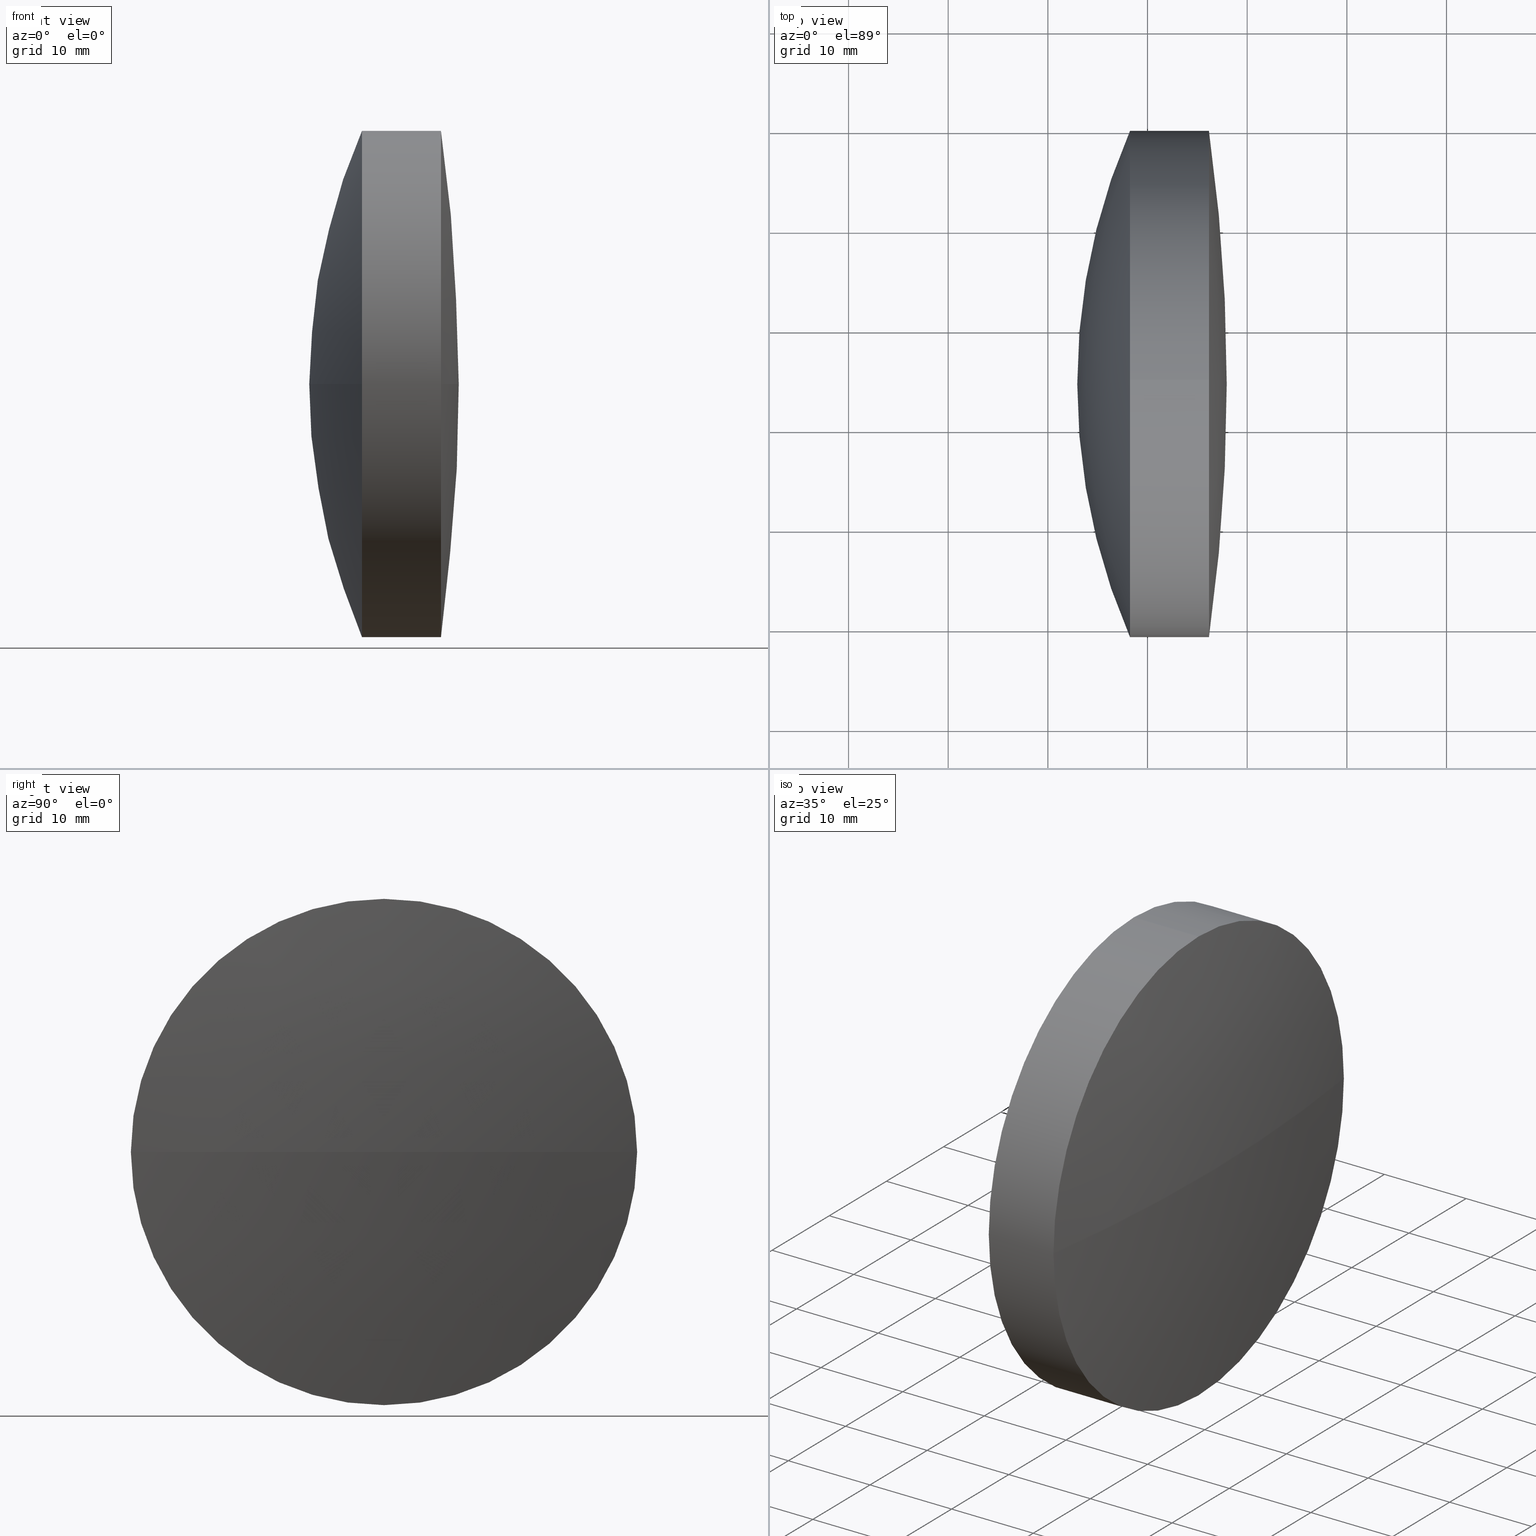
[diagram: canonical four-view strip — front | top / right | iso, engineering-drawing reading convention]
A machine part, canonical four-view strip (front | top / right | iso — engineering-drawing reading convention). The complete STEP part file that produces these views, byte-faithful:
ISO-10303-21;
HEADER;
FILE_DESCRIPTION (( 'STEP AP203' ),
    '1' );
FILE_NAME ('145281.STEP',
    '2024-05-13T01:16:53',
    ( '' ),
    ( '' ),
    'SwSTEP 2.0',
    'SolidWorks 2020',
    '' );
FILE_SCHEMA (( 'CONFIG_CONTROL_DESIGN' ));
ENDSEC;

DATA;
#1 = EDGE_LOOP ( 'NONE', ( #404, #8, #389, #387 ) ) ;
#2 = CIRCLE ( 'NONE', #357, 25.39999999999999858 ) ;
#3 = SHAPE_DEFINITION_REPRESENTATION ( #167, #356 ) ;
#4 = VERTEX_POINT ( 'NONE', #59 ) ;
#5 = EDGE_CURVE ( 'NONE', #343, #176, #364, .T. ) ;
#6 = CARTESIAN_POINT ( 'NONE',  ( -87.05097348642850363, 64.41514532454267794, 0.000000000000000000 ) ) ;
#7 = PRODUCT ( '145281', '145281', '', ( #227 ) ) ;
#8 = ORIENTED_EDGE ( 'NONE', *, *, #173, .T. ) ;
#9 =( GEOMETRIC_REPRESENTATION_CONTEXT ( 3 ) GLOBAL_UNCERTAINTY_ASSIGNED_CONTEXT ( ( #406 ) ) GLOBAL_UNIT_ASSIGNED_CONTEXT ( ( #119, #185, #283 ) ) REPRESENTATION_CONTEXT ( 'NONE', 'WORKASPACE' ) );
#10 = PERSON_AND_ORGANIZATION ( #118, #238 ) ;
#11 = ORIENTED_EDGE ( 'NONE', *, *, #24, .T. ) ;
#12 = CARTESIAN_POINT ( 'NONE',  ( -155.6709734864284940, 64.41514532454267794, 0.000000000000000000 ) ) ;
#13 = AXIS2_PLACEMENT_3D ( 'NONE', #87, #358, #400 ) ;
#14 = DIRECTION ( 'NONE',  ( -1.000000000000000000, -0.000000000000000000, -0.000000000000000000 ) ) ;
#15 = ORIENTED_EDGE ( 'NONE', *, *, #24, .F. ) ;
#16 = EDGE_CURVE ( 'NONE', #182, #4, #229, .T. ) ;
#17 = CARTESIAN_POINT ( 'NONE',  ( -79.15676304157061338, 64.41514532454267794, -25.39999999999999858 ) ) ;
#18 = DIRECTION ( 'NONE',  ( -1.000000000000000000, -0.000000000000000000, -0.000000000000000000 ) ) ;
#19 = CARTESIAN_POINT ( 'NONE',  ( -81.76059203481264603, 64.41514532454267794, 0.000000000000000000 ) ) ;
#20 = CARTESIAN_POINT ( 'NONE',  ( -75.05097348642850363, 64.41514532454267794, 25.39999999999999858 ) ) ;
#21 = DIRECTION ( 'NONE',  ( -0.000000000000000000, 0.000000000000000000, -1.000000000000000000 ) ) ;
#22 = CIRCLE ( 'NONE', #395, 25.39999999999999858 ) ;
#23 = DIRECTION ( 'NONE',  ( 0.000000000000000000, 0.000000000000000000, 1.000000000000000000 ) ) ;
#24 = EDGE_CURVE ( 'NONE', #115, #222, #114, .T. ) ;
#25 = CIRCLE ( 'NONE', #315, 25.39999999999999858 ) ;
#26 = ORIENTED_EDGE ( 'NONE', *, *, #138, .T. ) ;
#27 = CIRCLE ( 'NONE', #408, 181.6999999999999886 ) ;
#28 = DIRECTION ( 'NONE',  ( 0.000000000000000000, 1.000000000000000000, 0.000000000000000000 ) ) ;
#29 = DIRECTION ( 'NONE',  ( 0.000000000000000000, 1.224646799147353207E-16, -1.000000000000000000 ) ) ;
#30 = EDGE_CURVE ( 'NONE', #111, #4, #224, .T. ) ;
#31 = COORDINATED_UNIVERSAL_TIME_OFFSET ( 8, 0, .AHEAD. ) ;
#32 = ORIENTED_EDGE ( 'NONE', *, *, #107, .F. ) ;
#33 = COORDINATED_UNIVERSAL_TIME_OFFSET ( 8, 0, .AHEAD. ) ;
#34 = EDGE_LOOP ( 'NONE', ( #416, #413, #32, #247 ) ) ;
#35 = DIRECTION ( 'NONE',  ( -1.000000000000000000, -0.000000000000000000, -0.000000000000000000 ) ) ;
#36 = COORDINATED_UNIVERSAL_TIME_OFFSET ( 8, 0, .AHEAD. ) ;
#37 = ORIENTED_EDGE ( 'NONE', *, *, #380, .F. ) ;
#38 = AXIS2_PLACEMENT_3D ( 'NONE', #6, #35, #177 ) ;
#39 = EDGE_LOOP ( 'NONE', ( #436, #249, #11, #203 ) ) ;
#40 = DIRECTION ( 'NONE',  ( -1.000000000000000000, -0.000000000000000000, -0.000000000000000000 ) ) ;
#41 = EDGE_LOOP ( 'NONE', ( #382, #314, #15, #184, #208, #146 ) ) ;
#42 = CC_DESIGN_APPROVAL ( #275, ( #63 ) ) ;
#43 = DIRECTION ( 'NONE',  ( 0.000000000000000000, 0.000000000000000000, 1.000000000000000000 ) ) ;
#44 = AXIS2_PLACEMENT_3D ( 'NONE', #271, #104, #28 ) ;
#45 = DIRECTION ( 'NONE',  ( 0.000000000000000000, 0.000000000000000000, 1.000000000000000000 ) ) ;
#46 = DIRECTION ( 'NONE',  ( -0.000000000000000000, 0.000000000000000000, 1.000000000000000000 ) ) ;
#47 = AXIS2_PLACEMENT_3D ( 'NONE', #161, #189, #403 ) ;
#48 = PRODUCT_DEFINITION ( 'δ֪', '', #353, #393 ) ;
#49 = DIRECTION ( 'NONE',  ( 0.000000000000000000, 0.000000000000000000, 1.000000000000000000 ) ) ;
#50 = AXIS2_PLACEMENT_3D ( 'NONE', #292, #439, #56 ) ;
#51 = CARTESIAN_POINT ( 'NONE',  ( -73.83507646784927658, 39.01514532454268647, -3.110602869834275682E-15 ) ) ;
#52 = DIRECTION ( 'NONE',  ( -1.000000000000000000, -0.000000000000000000, -0.000000000000000000 ) ) ;
#53 = ORIENTED_EDGE ( 'NONE', *, *, #168, .F. ) ;
#54 = CALENDAR_DATE ( 2024, 13, 5 ) ;
#55 = FACE_OUTER_BOUND ( 'NONE', #39, .T. ) ;
#56 = DIRECTION ( 'NONE',  ( 1.000000000000000000, 0.000000000000000000, 0.000000000000000000 ) ) ;
#57 = DIRECTION ( 'NONE',  ( 1.000000000000000000, 0.000000000000000000, 0.000000000000000000 ) ) ;
#58 = AXIS2_PLACEMENT_3D ( 'NONE', #399, #323, #363 ) ;
#59 = CARTESIAN_POINT ( 'NONE',  ( -79.15676304157061338, 64.41514532454267794, 25.39999999999999858 ) ) ;
#60 = CARTESIAN_POINT ( 'NONE',  ( -73.83507646784927658, 89.81514532454266941, 0.000000000000000000 ) ) ;
#61 = AXIS2_PLACEMENT_3D ( 'NONE', #265, #29, #375 ) ;
#62 = CARTESIAN_POINT ( 'NONE',  ( -79.15676304157061338, 64.41514532454267794, 0.000000000000000000 ) ) ;
#63 = SECURITY_CLASSIFICATION ( '', '', #207 ) ;
#64 = APPROVAL_DATE_TIME ( #134, #418 ) ;
#65 = CC_DESIGN_PERSON_AND_ORGANIZATION_ASSIGNMENT ( #316, #384, ( #353 ) ) ;
#66 = CALENDAR_DATE ( 2024, 13, 5 ) ;
#67 = ORIENTED_EDGE ( 'NONE', *, *, #445, .F. ) ;
#68 = DIRECTION ( 'NONE',  ( 0.000000000000000000, 1.000000000000000000, 0.000000000000000000 ) ) ;
#69 = DATE_TIME_ROLE ( 'creation_date' ) ;
#70 = ORIENTED_EDGE ( 'NONE', *, *, #231, .T. ) ;
#71 = EDGE_CURVE ( 'NONE', #244, #222, #327, .T. ) ;
#72 = PERSON_AND_ORGANIZATION ( #118, #238 ) ;
#73 = ORIENTED_EDGE ( 'NONE', *, *, #159, .T. ) ;
#74 = CARTESIAN_POINT ( 'NONE',  ( 0.000000000000000000, 0.000000000000000000, 0.000000000000000000 ) ) ;
#75 = AXIS2_PLACEMENT_3D ( 'NONE', #62, #269, #45 ) ;
#76 = ORIENTED_EDGE ( 'NONE', *, *, #30, .T. ) ;
#77 = COORDINATED_UNIVERSAL_TIME_OFFSET ( 8, 0, .AHEAD. ) ;
#78 = ORIENTED_EDGE ( 'NONE', *, *, #80, .T. ) ;
#79 = DIRECTION ( 'NONE',  ( -1.000000000000000000, -0.000000000000000000, -0.000000000000000000 ) ) ;
#80 = EDGE_CURVE ( 'NONE', #376, #190, #162, .T. ) ;
#81 = AXIS2_PLACEMENT_3D ( 'NONE', #300, #18, #156 ) ;
#82 = DIRECTION ( 'NONE',  ( -0.000000000000000000, 0.000000000000000000, 1.000000000000000000 ) ) ;
#83 = AXIS2_PLACEMENT_3D ( 'NONE', #172, #170, #95 ) ;
#84 = CARTESIAN_POINT ( 'NONE',  ( -72.05097348642850363, 64.41514532454269215, 0.000000000000000000 ) ) ;
#85 = EDGE_CURVE ( 'NONE', #210, #190, #22, .T. ) ;
#86 = APPROVAL_PERSON_ORGANIZATION ( #303, #418, #100 ) ;
#87 = CARTESIAN_POINT ( 'NONE',  ( -79.15676304157061338, 64.41514532454267794, 0.000000000000000000 ) ) ;
#88 = CARTESIAN_POINT ( 'NONE',  ( -81.76059203481264603, 64.41514532454267794, 0.000000000000000000 ) ) ;
#89 = AXIS2_PLACEMENT_3D ( 'NONE', #428, #255, #360 ) ;
#90 = CARTESIAN_POINT ( 'NONE',  ( -253.7509734864285065, 64.41514532454267794, 0.000000000000000000 ) ) ;
#91 = CARTESIAN_POINT ( 'NONE',  ( -79.15676304157061338, 64.41514532454267794, -25.39999999999999858 ) ) ;
#92 = ADVANCED_FACE ( 'NONE', ( #433 ), #354, .T. ) ;
#93 = DIRECTION ( 'NONE',  ( 0.000000000000000000, 1.000000000000000000, 1.224646799147353207E-16 ) ) ;
#94 = DIRECTION ( 'NONE',  ( -1.000000000000000000, -0.000000000000000000, -0.000000000000000000 ) ) ;
#95 = DIRECTION ( 'NONE',  ( 0.000000000000000000, 1.000000000000000000, 1.224646799147353207E-16 ) ) ;
#96 = VERTEX_POINT ( 'NONE', #51 ) ;
#97 = CIRCLE ( 'NONE', #344, 25.39999999999999858 ) ;
#98 = SPHERICAL_SURFACE ( 'NONE', #143, 63.61999999999999744 ) ;
#99 = CARTESIAN_POINT ( 'NONE',  ( -75.05097348642850363, 64.41514532454267794, 0.000000000000000000 ) ) ;
#100 = APPROVAL_ROLE ( '' ) ;
#101 = CARTESIAN_POINT ( 'NONE',  ( -155.6709734864284940, 64.41514532454267794, 0.000000000000000000 ) ) ;
#102 = CC_DESIGN_PERSON_AND_ORGANIZATION_ASSIGNMENT ( #333, #163, ( #7 ) ) ;
#103 = DIRECTION ( 'NONE',  ( -0.000000000000000000, 0.000000000000000000, -1.000000000000000000 ) ) ;
#104 = DIRECTION ( 'NONE',  ( 0.000000000000000000, 0.000000000000000000, -1.000000000000000000 ) ) ;
#105 = DATE_AND_TIME ( #178, #202 ) ;
#106 = EDGE_LOOP ( 'NONE', ( #37, #421, #232, #334 ) ) ;
#107 = EDGE_CURVE ( 'NONE', #244, #96, #120, .T. ) ;
#108 = AXIS2_PLACEMENT_3D ( 'NONE', #237, #438, #136 ) ;
#109 = PERSON_AND_ORGANIZATION_ROLE ( 'creator' ) ;
#110 = ORIENTED_EDGE ( 'NONE', *, *, #173, .F. ) ;
#111 = VERTEX_POINT ( 'NONE', #430 ) ;
#112 = CIRCLE ( 'NONE', #47, 25.39999999999999858 ) ;
#113 = DATE_TIME_ROLE ( 'classification_date' ) ;
#114 = CIRCLE ( 'NONE', #171, 25.39999999999999858 ) ;
#115 = VERTEX_POINT ( 'NONE', #196 ) ;
#116 = ADVANCED_FACE ( 'NONE', ( #369 ), #125, .T. ) ;
#117 = VERTEX_POINT ( 'NONE', #91 ) ;
#118 = PERSON ( 'δָ��', 'δָ��', 'δָ��', ('δָ��'), ('δָ��'), ('δָ��') ) ;
#119 =( LENGTH_UNIT ( ) NAMED_UNIT ( * ) SI_UNIT ( .MILLI., .METRE. ) );
#120 = CIRCLE ( 'NONE', #81, 25.39999999999999858 ) ;
#121 = CARTESIAN_POINT ( 'NONE',  ( -87.05097348642850363, 64.41514532454267794, -25.39999999999999858 ) ) ;
#122 = AXIS2_PLACEMENT_3D ( 'NONE', #321, #40, #391 ) ;
#123 = DIRECTION ( 'NONE',  ( 0.000000000000000000, 1.000000000000000000, 1.224646799147353207E-16 ) ) ;
#124 = DIRECTION ( 'NONE',  ( -1.000000000000000000, -0.000000000000000000, -0.000000000000000000 ) ) ;
#125 = CYLINDRICAL_SURFACE ( 'NONE', #447, 25.39999999999999858 ) ;
#126 = SPHERICAL_SURFACE ( 'NONE', #305, 80.62000000000000455 ) ;
#127 = EDGE_LOOP ( 'NONE', ( #407, #329, #264, #423, #183, #154 ) ) ;
#128 = FACE_OUTER_BOUND ( 'NONE', #371, .T. ) ;
#129 = VERTEX_POINT ( 'NONE', #226 ) ;
#130 = DIRECTION ( 'NONE',  ( -1.000000000000000000, -0.000000000000000000, -0.000000000000000000 ) ) ;
#131 = AXIS2_PLACEMENT_3D ( 'NONE', #12, #397, #263 ) ;
#132 = ADVANCED_FACE ( 'NONE', ( #366 ), #234, .T. ) ;
#133 = CLOSED_SHELL ( 'NONE', ( #437, #191, #402, #374, #298, #92 ) ) ;
#134 = DATE_AND_TIME ( #54, #295 ) ;
#135 = CARTESIAN_POINT ( 'NONE',  ( -81.76059203481264603, 64.41514532454267794, 0.000000000000000000 ) ) ;
#136 = DIRECTION ( 'NONE',  ( 0.000000000000000000, 1.000000000000000000, 0.000000000000000000 ) ) ;
#137 = APPROVAL_STATUS ( 'not_yet_approved' ) ;
#138 = EDGE_CURVE ( 'NONE', #284, #376, #209, .T. ) ;
#139 = ORIENTED_EDGE ( 'NONE', *, *, #429, .F. ) ;
#140 = APPLICATION_PROTOCOL_DEFINITION ( 'international standard', 'config_control_design', 1994, #392 ) ;
#141 = VECTOR ( 'NONE', #79, 1000.000000000000000 ) ;
#142 = ORIENTED_EDGE ( 'NONE', *, *, #359, .F. ) ;
#143 = AXIS2_PLACEMENT_3D ( 'NONE', #233, #103, #378 ) ;
#144 = ORIENTED_EDGE ( 'NONE', *, *, #380, .T. ) ;
#145 = CC_DESIGN_SECURITY_CLASSIFICATION ( #63, ( #353 ) ) ;
#146 = ORIENTED_EDGE ( 'NONE', *, *, #150, .T. ) ;
#147 = ADVANCED_FACE ( 'NONE', ( #55 ), #155, .F. ) ;
#148 = VERTEX_POINT ( 'NONE', #84 ) ;
#149 = CYLINDRICAL_SURFACE ( 'NONE', #38, 25.39999999999999858 ) ;
#150 = EDGE_CURVE ( 'NONE', #182, #312, #112, .T. ) ;
#151 = CARTESIAN_POINT ( 'NONE',  ( -79.15676304157061338, 39.01514532454265805, -3.110602869834279232E-15 ) ) ;
#152 = CIRCLE ( 'NONE', #13, 25.39999999999999858 ) ;
#153 = DIRECTION ( 'NONE',  ( -1.000000000000000000, -0.000000000000000000, -0.000000000000000000 ) ) ;
#154 = ORIENTED_EDGE ( 'NONE', *, *, #186, .F. ) ;
#155 = SPHERICAL_SURFACE ( 'NONE', #131, 80.62000000000000455 ) ;
#156 = DIRECTION ( 'NONE',  ( 0.000000000000000000, 0.000000000000000000, 1.000000000000000000 ) ) ;
#157 = LOCAL_TIME ( 9, 16, 53.00000000000000000, #77 ) ;
#158 = DIRECTION ( 'NONE',  ( 0.000000000000000000, 1.000000000000000000, 0.000000000000000000 ) ) ;
#159 = EDGE_CURVE ( 'NONE', #376, #129, #339, .T. ) ;
#160 = DIRECTION ( 'NONE',  ( -1.000000000000000000, -0.000000000000000000, -0.000000000000000000 ) ) ;
#161 = CARTESIAN_POINT ( 'NONE',  ( -73.83507646784929079, 64.41514532454267794, 0.000000000000000000 ) ) ;
#162 = LINE ( 'NONE', #193, #141 ) ;
#163 = PERSON_AND_ORGANIZATION_ROLE ( 'design_owner' ) ;
#164 = AXIS2_PLACEMENT_3D ( 'NONE', #304, #230, #68 ) ;
#165 = DIRECTION ( 'NONE',  ( 0.000000000000000000, 0.000000000000000000, 1.000000000000000000 ) ) ;
#166 = CARTESIAN_POINT ( 'NONE',  ( -79.15676304157061338, 64.41514532454267794, 0.000000000000000000 ) ) ;
#167 = PRODUCT_DEFINITION_SHAPE ( 'NONE', 'NONE',  #48 ) ;
#168 = EDGE_CURVE ( 'NONE', #343, #276, #97, .T. ) ;
#169 = VECTOR ( 'NONE', #52, 1000.000000000000000 ) ;
#170 = DIRECTION ( 'NONE',  ( 0.000000000000000000, 1.224646799147353207E-16, -1.000000000000000000 ) ) ;
#171 = AXIS2_PLACEMENT_3D ( 'NONE', #199, #297, #262 ) ;
#172 = CARTESIAN_POINT ( 'NONE',  ( -253.7509734864285065, 64.41514532454267794, 0.000000000000000000 ) ) ;
#173 = EDGE_CURVE ( 'NONE', #302, #129, #361, .T. ) ;
#174 = ORIENTED_EDGE ( 'NONE', *, *, #258, .T. ) ;
#175 = DATE_AND_TIME ( #205, #330 ) ;
#176 = VERTEX_POINT ( 'NONE', #219 ) ;
#177 = DIRECTION ( 'NONE',  ( 0.000000000000000000, 0.000000000000000000, 1.000000000000000000 ) ) ;
#178 = CALENDAR_DATE ( 2024, 13, 5 ) ;
#179 = ORIENTED_EDGE ( 'NONE', *, *, #279, .T. ) ;
#180 = CIRCLE ( 'NONE', #396, 25.39999999999999858 ) ;
#181 = DATE_AND_TIME ( #66, #157 ) ;
#182 = VERTEX_POINT ( 'NONE', #435 ) ;
#183 = ORIENTED_EDGE ( 'NONE', *, *, #30, .F. ) ;
#184 = ORIENTED_EDGE ( 'NONE', *, *, #231, .F. ) ;
#185 =( NAMED_UNIT ( * ) PLANE_ANGLE_UNIT ( ) SI_UNIT ( $, .RADIAN. ) );
#186 = EDGE_CURVE ( 'NONE', #222, #111, #440, .T. ) ;
#187 = FACE_OUTER_BOUND ( 'NONE', #242, .T. ) ;
#188 = AXIS2_PLACEMENT_3D ( 'NONE', #228, #153, #365 ) ;
#189 = DIRECTION ( 'NONE',  ( -1.000000000000000000, -0.000000000000000000, -0.000000000000000000 ) ) ;
#190 = VERTEX_POINT ( 'NONE', #194 ) ;
#191 = ADVANCED_FACE ( 'NONE', ( #187 ), #126, .T. ) ;
#192 = CARTESIAN_POINT ( 'NONE',  ( -155.6709734864284940, 64.41514532454267794, 0.000000000000000000 ) ) ;
#193 = CARTESIAN_POINT ( 'NONE',  ( -87.05097348642850363, 64.41514532454267794, 25.39999999999999858 ) ) ;
#194 = CARTESIAN_POINT ( 'NONE',  ( -81.76059203481264603, 64.41514532454267794, 25.39999999999999858 ) ) ;
#195 = PRODUCT_RELATED_PRODUCT_CATEGORY ( 'detail', '', ( #7 ) ) ;
#196 = CARTESIAN_POINT ( 'NONE',  ( -79.15676304157061338, 89.81514532454271205, 0.000000000000000000 ) ) ;
#197 = VECTOR ( 'NONE', #130, 1000.000000000000000 ) ;
#198 = DIRECTION ( 'NONE',  ( -1.000000000000000000, -0.000000000000000000, -0.000000000000000000 ) ) ;
#199 = CARTESIAN_POINT ( 'NONE',  ( -79.15676304157061338, 64.41514532454267794, 0.000000000000000000 ) ) ;
#200 = CIRCLE ( 'NONE', #301, 80.62000000000001876 ) ;
#201 = APPLICATION_PROTOCOL_DEFINITION ( 'international standard', 'config_control_design', 1994, #311 ) ;
#202 = LOCAL_TIME ( 9, 16, 53.00000000000000000, #36 ) ;
#203 = ORIENTED_EDGE ( 'NONE', *, *, #186, .T. ) ;
#204 = FACE_OUTER_BOUND ( 'NONE', #1, .T. ) ;
#205 = CALENDAR_DATE ( 2024, 13, 5 ) ;
#206 = ORIENTED_EDGE ( 'NONE', *, *, #445, .T. ) ;
#207 = SECURITY_CLASSIFICATION_LEVEL ( 'unclassified' ) ;
#208 = ORIENTED_EDGE ( 'NONE', *, *, #16, .F. ) ;
#209 = CIRCLE ( 'NONE', #75, 25.39999999999999858 ) ;
#210 = VERTEX_POINT ( 'NONE', #293 ) ;
#211 = EDGE_CURVE ( 'NONE', #117, #276, #331, .T. ) ;
#212 = ORIENTED_EDGE ( 'NONE', *, *, #289, .T. ) ;
#213 = APPROVAL_DATE_TIME ( #181, #223 ) ;
#214 = ORIENTED_EDGE ( 'NONE', *, *, #211, .T. ) ;
#215 = CC_DESIGN_APPROVAL ( #223, ( #353 ) ) ;
#216 = CARTESIAN_POINT ( 'NONE',  ( -253.7509734864285065, 64.41514532454267794, 0.000000000000000000 ) ) ;
#217 = EDGE_CURVE ( 'NONE', #302, #284, #325, .T. ) ;
#218 = DIRECTION ( 'NONE',  ( 0.000000000000000000, 0.000000000000000000, 1.000000000000000000 ) ) ;
#219 = CARTESIAN_POINT ( 'NONE',  ( -87.05097348642850363, 64.41514532454267794, 0.000000000000000000 ) ) ;
#220 = CARTESIAN_POINT ( 'NONE',  ( -73.83507646784929079, 64.41514532454267794, 0.000000000000000000 ) ) ;
#221 = AXIS2_PLACEMENT_3D ( 'NONE', #398, #46, #368 ) ;
#222 = VERTEX_POINT ( 'NONE', #17 ) ;
#223 = APPROVAL ( #137, 'δָ��' ) ;
#224 = CIRCLE ( 'NONE', #254, 25.39999999999999858 ) ;
#225 = DIRECTION ( 'NONE',  ( -1.000000000000000000, -0.000000000000000000, -0.000000000000000000 ) ) ;
#226 = CARTESIAN_POINT ( 'NONE',  ( -79.15676304157061338, 89.81514532454271205, 0.000000000000000000 ) ) ;
#227 = MECHANICAL_CONTEXT ( 'NONE', #392, 'mechanical' ) ;
#228 = CARTESIAN_POINT ( 'NONE',  ( -79.15676304157061338, 64.41514532454267794, 0.000000000000000000 ) ) ;
#229 = LINE ( 'NONE', #20, #422 ) ;
#230 = DIRECTION ( 'NONE',  ( -0.000000000000000000, 0.000000000000000000, -1.000000000000000000 ) ) ;
#231 = EDGE_CURVE ( 'NONE', #4, #115, #152, .T. ) ;
#232 = ORIENTED_EDGE ( 'NONE', *, *, #273, .T. ) ;
#233 = CARTESIAN_POINT ( 'NONE',  ( -23.43097348642850264, 64.41514532454267794, 0.000000000000000000 ) ) ;
#234 = CYLINDRICAL_SURFACE ( 'NONE', #386, 25.39999999999999858 ) ;
#235 = AXIS2_PLACEMENT_3D ( 'NONE', #101, #338, #57 ) ;
#236 = SPHERICAL_SURFACE ( 'NONE', #108, 63.61999999999999744 ) ;
#237 = CARTESIAN_POINT ( 'NONE',  ( -23.43097348642850264, 64.41514532454267794, 0.000000000000000000 ) ) ;
#238 = ORGANIZATION ( 'δָ��', 'δָ��', '' ) ;
#239 = CC_DESIGN_DATE_AND_TIME_ASSIGNMENT ( #105, #113, ( #63 ) ) ;
#240 = CARTESIAN_POINT ( 'NONE',  ( -75.05097348642848942, 64.41514532454267794, 0.000000000000000000 ) ) ;
#241 = APPROVAL_ROLE ( '' ) ;
#242 = EDGE_LOOP ( 'NONE', ( #110, #385, #67, #347 ) ) ;
#243 = DIRECTION ( 'NONE',  ( 0.000000000000000000, 0.000000000000000000, 1.000000000000000000 ) ) ;
#244 = VERTEX_POINT ( 'NONE', #324 ) ;
#245 = ADVANCED_FACE ( 'NONE', ( #432 ), #253, .T. ) ;
#246 = AXIS2_PLACEMENT_3D ( 'NONE', #362, #299, #218 ) ;
#247 = ORIENTED_EDGE ( 'NONE', *, *, #287, .F. ) ;
#248 = APPROVAL_STATUS ( 'not_yet_approved' ) ;
#249 = ORIENTED_EDGE ( 'NONE', *, *, #359, .T. ) ;
#250 = DIRECTION ( 'NONE',  ( -0.000000000000000000, 0.000000000000000000, -1.000000000000000000 ) ) ;
#251 = ORIENTED_EDGE ( 'NONE', *, *, #336, .F. ) ;
#252 = FACE_OUTER_BOUND ( 'NONE', #309, .T. ) ;
#253 = SPHERICAL_SURFACE ( 'NONE', #268, 181.6999999999999886 ) ;
#254 = AXIS2_PLACEMENT_3D ( 'NONE', #166, #94, #294 ) ;
#255 = DIRECTION ( 'NONE',  ( -1.000000000000000000, -0.000000000000000000, -0.000000000000000000 ) ) ;
#256 = CIRCLE ( 'NONE', #61, 63.62000000000001165 ) ;
#257 = DIRECTION ( 'NONE',  ( -0.000000000000000000, 0.000000000000000000, -1.000000000000000000 ) ) ;
#258 = EDGE_CURVE ( 'NONE', #148, #312, #27, .T. ) ;
#259 = EDGE_LOOP ( 'NONE', ( #251, #174, #427, #139 ) ) ;
#260 = AXIS2_PLACEMENT_3D ( 'NONE', #74, #243, #383 ) ;
#261 = DIRECTION ( 'NONE',  ( 0.000000000000000000, 0.000000000000000000, 1.000000000000000000 ) ) ;
#262 = DIRECTION ( 'NONE',  ( 0.000000000000000000, 0.000000000000000000, 1.000000000000000000 ) ) ;
#263 = DIRECTION ( 'NONE',  ( 0.000000000000000000, 1.000000000000000000, 0.000000000000000000 ) ) ;
#264 = ORIENTED_EDGE ( 'NONE', *, *, #429, .T. ) ;
#265 = CARTESIAN_POINT ( 'NONE',  ( -23.43097348642850264, 64.41514532454267794, 0.000000000000000000 ) ) ;
#266 = CARTESIAN_POINT ( 'NONE',  ( -75.05097348642850363, 64.41514532454267794, -25.39999999999999858 ) ) ;
#267 = DIRECTION ( 'NONE',  ( 0.000000000000000000, 0.000000000000000000, 1.000000000000000000 ) ) ;
#268 = AXIS2_PLACEMENT_3D ( 'NONE', #90, #21, #290 ) ;
#269 = DIRECTION ( 'NONE',  ( -1.000000000000000000, -0.000000000000000000, -0.000000000000000000 ) ) ;
#270 = APPROVAL_STATUS ( 'not_yet_approved' ) ;
#271 = CARTESIAN_POINT ( 'NONE',  ( -155.6709734864284940, 64.41514532454267794, 0.000000000000000000 ) ) ;
#272 = FACE_OUTER_BOUND ( 'NONE', #106, .T. ) ;
#273 = EDGE_CURVE ( 'NONE', #190, #343, #281, .T. ) ;
#274 = PERSON_AND_ORGANIZATION ( #118, #238 ) ;
#275 = APPROVAL ( #248, 'δָ��' ) ;
#276 = VERTEX_POINT ( 'NONE', #296 ) ;
#277 = ORIENTED_EDGE ( 'NONE', *, *, #211, .F. ) ;
#278 = AXIS2_PLACEMENT_3D ( 'NONE', #135, #198, #165 ) ;
#279 = EDGE_CURVE ( 'NONE', #346, #111, #200, .T. ) ;
#280 = ORIENTED_EDGE ( 'NONE', *, *, #367, .F. ) ;
#281 = CIRCLE ( 'NONE', #89, 25.39999999999999858 ) ;
#282 = ORIENTED_EDGE ( 'NONE', *, *, #80, .F. ) ;
#283 =( NAMED_UNIT ( * ) SI_UNIT ( $, .STERADIAN. ) SOLID_ANGLE_UNIT ( ) );
#284 = VERTEX_POINT ( 'NONE', #151 ) ;
#285 = DIRECTION ( 'NONE',  ( -1.000000000000000000, -0.000000000000000000, -0.000000000000000000 ) ) ;
#286 = MANIFOLD_SOLID_BREP ( '145281a-1-solid1', #133 ) ;
#287 = EDGE_CURVE ( 'NONE', #312, #244, #25, .T. ) ;
#288 = CARTESIAN_POINT ( 'NONE',  ( -79.15676304157061338, 64.41514532454267794, 0.000000000000000000 ) ) ;
#289 = EDGE_CURVE ( 'NONE', #129, #117, #2, .T. ) ;
#290 = DIRECTION ( 'NONE',  ( 0.000000000000000000, 1.000000000000000000, 0.000000000000000000 ) ) ;
#291 = CIRCLE ( 'NONE', #83, 181.6999999999999886 ) ;
#292 = CARTESIAN_POINT ( 'NONE',  ( -23.43097348642850264, 64.41514532454267794, 0.000000000000000000 ) ) ;
#293 = CARTESIAN_POINT ( 'NONE',  ( -81.76059203481264603, 39.01514532454267226, -3.110602869834276865E-15 ) ) ;
#294 = DIRECTION ( 'NONE',  ( 0.000000000000000000, 0.000000000000000000, 1.000000000000000000 ) ) ;
#295 = LOCAL_TIME ( 9, 16, 53.00000000000000000, #443 ) ;
#296 = CARTESIAN_POINT ( 'NONE',  ( -81.76059203481264603, 64.41514532454267794, -25.39999999999999858 ) ) ;
#297 = DIRECTION ( 'NONE',  ( -1.000000000000000000, -0.000000000000000000, -0.000000000000000000 ) ) ;
#298 = ADVANCED_FACE ( 'NONE', ( #204 ), #441, .T. ) ;
#299 = DIRECTION ( 'NONE',  ( -1.000000000000000000, -0.000000000000000000, -0.000000000000000000 ) ) ;
#300 = CARTESIAN_POINT ( 'NONE',  ( -73.83507646784929079, 64.41514532454267794, 0.000000000000000000 ) ) ;
#301 = AXIS2_PLACEMENT_3D ( 'NONE', #426, #328, #123 ) ;
#302 = VERTEX_POINT ( 'NONE', #370 ) ;
#303 = PERSON_AND_ORGANIZATION ( #118, #238 ) ;
#304 = CARTESIAN_POINT ( 'NONE',  ( -155.6709734864284940, 64.41514532454267794, 0.000000000000000000 ) ) ;
#305 = AXIS2_PLACEMENT_3D ( 'NONE', #424, #257, #158 ) ;
#306 = SPHERICAL_SURFACE ( 'NONE', #44, 80.62000000000000455 ) ;
#307 = CC_DESIGN_DATE_AND_TIME_ASSIGNMENT ( #175, #69, ( #48 ) ) ;
#308 = FACE_OUTER_BOUND ( 'NONE', #259, .T. ) ;
#309 = EDGE_LOOP ( 'NONE', ( #212, #214, #53, #320, #282, #73 ) ) ;
#310 = ADVANCED_FACE ( 'NONE', ( #128 ), #306, .F. ) ;
#311 = APPLICATION_CONTEXT ( 'configuration controlled 3d designs of mechanical parts and assemblies' ) ;
#312 = VERTEX_POINT ( 'NONE', #60 ) ;
#313 = DATE_AND_TIME ( #342, #319 ) ;
#314 = ORIENTED_EDGE ( 'NONE', *, *, #71, .T. ) ;
#315 = AXIS2_PLACEMENT_3D ( 'NONE', #220, #225, #49 ) ;
#316 = PERSON_AND_ORGANIZATION ( #118, #238 ) ;
#317 = ORIENTED_EDGE ( 'NONE', *, *, #168, .T. ) ;
#318 = CARTESIAN_POINT ( 'NONE',  ( -79.15676304157061338, 64.41514532454267794, 0.000000000000000000 ) ) ;
#319 = LOCAL_TIME ( 9, 16, 53.00000000000000000, #33 ) ;
#320 = ORIENTED_EDGE ( 'NONE', *, *, #273, .F. ) ;
#321 = CARTESIAN_POINT ( 'NONE',  ( -73.83507646784929079, 64.41514532454267794, 0.000000000000000000 ) ) ;
#322 = CC_DESIGN_PERSON_AND_ORGANIZATION_ASSIGNMENT ( #274, #340, ( #63 ) ) ;
#323 = DIRECTION ( 'NONE',  ( -1.000000000000000000, -0.000000000000000000, -0.000000000000000000 ) ) ;
#324 = CARTESIAN_POINT ( 'NONE',  ( -73.83507646784929079, 64.41514532454267794, -25.39999999999999858 ) ) ;
#325 = CIRCLE ( 'NONE', #419, 80.62000000000001876 ) ;
#326 = DIRECTION ( 'NONE',  ( 1.000000000000000000, 0.000000000000000000, 0.000000000000000000 ) ) ;
#327 = LINE ( 'NONE', #266, #197 ) ;
#328 = DIRECTION ( 'NONE',  ( 0.000000000000000000, 1.224646799147353207E-16, -1.000000000000000000 ) ) ;
#329 = ORIENTED_EDGE ( 'NONE', *, *, #107, .T. ) ;
#330 = LOCAL_TIME ( 9, 16, 53.00000000000000000, #31 ) ;
#331 = LINE ( 'NONE', #121, #169 ) ;
#332 = CARTESIAN_POINT ( 'NONE',  ( -75.05097348642850363, 64.41514532454267794, 0.000000000000000000 ) ) ;
#333 = PERSON_AND_ORGANIZATION ( #118, #238 ) ;
#334 = ORIENTED_EDGE ( 'NONE', *, *, #5, .T. ) ;
#335 = CIRCLE ( 'NONE', #278, 25.39999999999999858 ) ;
#336 = EDGE_CURVE ( 'NONE', #148, #96, #291, .T. ) ;
#337 = APPROVAL_PERSON_ORGANIZATION ( #420, #223, #379 ) ;
#338 = DIRECTION ( 'NONE',  ( 0.000000000000000000, 0.000000000000000000, 1.000000000000000000 ) ) ;
#339 = CIRCLE ( 'NONE', #188, 25.39999999999999858 ) ;
#340 = PERSON_AND_ORGANIZATION_ROLE ( 'classification_officer' ) ;
#341 = ORIENTED_EDGE ( 'NONE', *, *, #85, .F. ) ;
#342 = CALENDAR_DATE ( 2024, 13, 5 ) ;
#343 = VERTEX_POINT ( 'NONE', #405 ) ;
#344 = AXIS2_PLACEMENT_3D ( 'NONE', #19, #14, #261 ) ;
#345 = PERSON_AND_ORGANIZATION_ROLE ( 'design_supplier' ) ;
#346 = VERTEX_POINT ( 'NONE', #240 ) ;
#347 = ORIENTED_EDGE ( 'NONE', *, *, #289, .F. ) ;
#348 = CARTESIAN_POINT ( 'NONE',  ( -253.7509734864285065, 64.41514532454267794, 0.000000000000000000 ) ) ;
#349 = APPROVAL_DATE_TIME ( #313, #275 ) ;
#350 = EDGE_LOOP ( 'NONE', ( #317, #390, #144, #446 ) ) ;
#351 = CC_DESIGN_PERSON_AND_ORGANIZATION_ASSIGNMENT ( #72, #345, ( #353 ) ) ;
#352 = DIRECTION ( 'NONE',  ( 0.000000000000000000, 1.000000000000000000, 0.000000000000000000 ) ) ;
#353 = PRODUCT_DEFINITION_FORMATION_WITH_SPECIFIED_SOURCE ( '�κ�', '', #7, .NOT_KNOWN. ) ;
#354 = CYLINDRICAL_SURFACE ( 'NONE', #58, 25.39999999999999858 ) ;
#355 = SPHERICAL_SURFACE ( 'NONE', #414, 181.6999999999999886 ) ;
#356 = ADVANCED_BREP_SHAPE_REPRESENTATION ( '145281', ( #434, #286, #260 ), #9 ) ;
#357 = AXIS2_PLACEMENT_3D ( 'NONE', #288, #444, #267 ) ;
#358 = DIRECTION ( 'NONE',  ( -1.000000000000000000, -0.000000000000000000, -0.000000000000000000 ) ) ;
#359 = EDGE_CURVE ( 'NONE', #346, #115, #425, .T. ) ;
#360 = DIRECTION ( 'NONE',  ( 0.000000000000000000, 0.000000000000000000, 1.000000000000000000 ) ) ;
#361 = CIRCLE ( 'NONE', #221, 80.62000000000000455 ) ;
#362 = CARTESIAN_POINT ( 'NONE',  ( -79.15676304157061338, 64.41514532454267794, 0.000000000000000000 ) ) ;
#363 = DIRECTION ( 'NONE',  ( 0.000000000000000000, 0.000000000000000000, 1.000000000000000000 ) ) ;
#364 = CIRCLE ( 'NONE', #50, 63.61999999999999744 ) ;
#365 = DIRECTION ( 'NONE',  ( 0.000000000000000000, 0.000000000000000000, 1.000000000000000000 ) ) ;
#366 = FACE_OUTER_BOUND ( 'NONE', #127, .T. ) ;
#367 = EDGE_CURVE ( 'NONE', #276, #210, #335, .T. ) ;
#368 = DIRECTION ( 'NONE',  ( 1.000000000000000000, 0.000000000000000000, 0.000000000000000000 ) ) ;
#369 = FACE_OUTER_BOUND ( 'NONE', #41, .T. ) ;
#370 = CARTESIAN_POINT ( 'NONE',  ( -75.05097348642848942, 64.41514532454267794, 0.000000000000000000 ) ) ;
#371 = EDGE_LOOP ( 'NONE', ( #142, #179, #76, #70 ) ) ;
#372 = DIRECTION ( 'NONE',  ( -1.000000000000000000, -0.000000000000000000, -0.000000000000000000 ) ) ;
#373 = CIRCLE ( 'NONE', #122, 25.39999999999999858 ) ;
#374 = ADVANCED_FACE ( 'NONE', ( #272 ), #236, .T. ) ;
#375 = DIRECTION ( 'NONE',  ( 0.000000000000000000, 1.000000000000000000, 1.224646799147352961E-16 ) ) ;
#376 = VERTEX_POINT ( 'NONE', #381 ) ;
#377 = CC_DESIGN_APPROVAL ( #418, ( #48 ) ) ;
#378 = DIRECTION ( 'NONE',  ( 0.000000000000000000, 1.000000000000000000, 0.000000000000000000 ) ) ;
#379 = APPROVAL_ROLE ( '' ) ;
#380 = EDGE_CURVE ( 'NONE', #210, #176, #256, .T. ) ;
#381 = CARTESIAN_POINT ( 'NONE',  ( -79.15676304157061338, 64.41514532454267794, 25.39999999999999858 ) ) ;
#382 = ORIENTED_EDGE ( 'NONE', *, *, #287, .T. ) ;
#383 = DIRECTION ( 'NONE',  ( 1.000000000000000000, 0.000000000000000000, 0.000000000000000000 ) ) ;
#384 = PERSON_AND_ORGANIZATION_ROLE ( 'creator' ) ;
#385 = ORIENTED_EDGE ( 'NONE', *, *, #217, .T. ) ;
#386 = AXIS2_PLACEMENT_3D ( 'NONE', #99, #372, #410 ) ;
#387 = ORIENTED_EDGE ( 'NONE', *, *, #138, .F. ) ;
#388 = CC_DESIGN_PERSON_AND_ORGANIZATION_ASSIGNMENT ( #412, #109, ( #48 ) ) ;
#389 = ORIENTED_EDGE ( 'NONE', *, *, #159, .F. ) ;
#390 = ORIENTED_EDGE ( 'NONE', *, *, #367, .T. ) ;
#391 = DIRECTION ( 'NONE',  ( 0.000000000000000000, 0.000000000000000000, 1.000000000000000000 ) ) ;
#392 = APPLICATION_CONTEXT ( 'configuration controlled 3d designs of mechanical parts and assemblies' ) ;
#393 = DESIGN_CONTEXT ( 'detailed design', #311, 'design' ) ;
#394 = DIRECTION ( 'NONE',  ( 0.000000000000000000, 1.224646799147353207E-16, -1.000000000000000000 ) ) ;
#395 = AXIS2_PLACEMENT_3D ( 'NONE', #88, #160, #43 ) ;
#396 = AXIS2_PLACEMENT_3D ( 'NONE', #318, #285, #417 ) ;
#397 = DIRECTION ( 'NONE',  ( 0.000000000000000000, 0.000000000000000000, -1.000000000000000000 ) ) ;
#398 = CARTESIAN_POINT ( 'NONE',  ( -155.6709734864284940, 64.41514532454267794, 0.000000000000000000 ) ) ;
#399 = CARTESIAN_POINT ( 'NONE',  ( -87.05097348642850363, 64.41514532454267794, 0.000000000000000000 ) ) ;
#400 = DIRECTION ( 'NONE',  ( 0.000000000000000000, 0.000000000000000000, 1.000000000000000000 ) ) ;
#401 = DIRECTION ( 'NONE',  ( -1.000000000000000000, -0.000000000000000000, -0.000000000000000000 ) ) ;
#402 = ADVANCED_FACE ( 'NONE', ( #411 ), #98, .T. ) ;
#403 = DIRECTION ( 'NONE',  ( 0.000000000000000000, 0.000000000000000000, 1.000000000000000000 ) ) ;
#404 = ORIENTED_EDGE ( 'NONE', *, *, #217, .F. ) ;
#405 = CARTESIAN_POINT ( 'NONE',  ( -81.76059203481264603, 89.81514532454268362, 0.000000000000000000 ) ) ;
#406 = UNCERTAINTY_MEASURE_WITH_UNIT (LENGTH_MEASURE( 1.000000000000000082E-05 ), #119, 'distance_accuracy_value', 'NONE');
#407 = ORIENTED_EDGE ( 'NONE', *, *, #71, .F. ) ;
#408 = AXIS2_PLACEMENT_3D ( 'NONE', #216, #82, #326 ) ;
#409 = ADVANCED_FACE ( 'NONE', ( #308 ), #355, .T. ) ;
#410 = DIRECTION ( 'NONE',  ( 0.000000000000000000, 0.000000000000000000, 1.000000000000000000 ) ) ;
#411 = FACE_OUTER_BOUND ( 'NONE', #350, .T. ) ;
#412 = PERSON_AND_ORGANIZATION ( #118, #238 ) ;
#413 = ORIENTED_EDGE ( 'NONE', *, *, #336, .T. ) ;
#414 = AXIS2_PLACEMENT_3D ( 'NONE', #348, #250, #352 ) ;
#415 = EDGE_LOOP ( 'NONE', ( #277, #206, #26, #78, #341, #280 ) ) ;
#416 = ORIENTED_EDGE ( 'NONE', *, *, #258, .F. ) ;
#417 = DIRECTION ( 'NONE',  ( 0.000000000000000000, 0.000000000000000000, 1.000000000000000000 ) ) ;
#418 = APPROVAL ( #270, 'δָ��' ) ;
#419 = AXIS2_PLACEMENT_3D ( 'NONE', #192, #394, #93 ) ;
#420 = PERSON_AND_ORGANIZATION ( #118, #238 ) ;
#421 = ORIENTED_EDGE ( 'NONE', *, *, #85, .T. ) ;
#422 = VECTOR ( 'NONE', #124, 1000.000000000000000 ) ;
#423 = ORIENTED_EDGE ( 'NONE', *, *, #16, .T. ) ;
#424 = CARTESIAN_POINT ( 'NONE',  ( -155.6709734864284940, 64.41514532454267794, 0.000000000000000000 ) ) ;
#425 = CIRCLE ( 'NONE', #235, 80.62000000000000455 ) ;
#426 = CARTESIAN_POINT ( 'NONE',  ( -155.6709734864284940, 64.41514532454267794, 0.000000000000000000 ) ) ;
#427 = ORIENTED_EDGE ( 'NONE', *, *, #150, .F. ) ;
#428 = CARTESIAN_POINT ( 'NONE',  ( -81.76059203481264603, 64.41514532454267794, 0.000000000000000000 ) ) ;
#429 = EDGE_CURVE ( 'NONE', #96, #182, #373, .T. ) ;
#430 = CARTESIAN_POINT ( 'NONE',  ( -79.15676304157061338, 39.01514532454265805, -3.110602869834279232E-15 ) ) ;
#431 = APPROVAL_PERSON_ORGANIZATION ( #10, #275, #241 ) ;
#432 = FACE_OUTER_BOUND ( 'NONE', #34, .T. ) ;
#433 = FACE_OUTER_BOUND ( 'NONE', #415, .T. ) ;
#434 = MANIFOLD_SOLID_BREP ( '145281b-1-solid1', #442 ) ;
#435 = CARTESIAN_POINT ( 'NONE',  ( -73.83507646784929079, 64.41514532454267794, 25.39999999999999858 ) ) ;
#436 = ORIENTED_EDGE ( 'NONE', *, *, #279, .F. ) ;
#437 = ADVANCED_FACE ( 'NONE', ( #252 ), #149, .T. ) ;
#438 = DIRECTION ( 'NONE',  ( -0.000000000000000000, 0.000000000000000000, -1.000000000000000000 ) ) ;
#439 = DIRECTION ( 'NONE',  ( -0.000000000000000000, 0.000000000000000000, 1.000000000000000000 ) ) ;
#440 = CIRCLE ( 'NONE', #246, 25.39999999999999858 ) ;
#441 = SPHERICAL_SURFACE ( 'NONE', #164, 80.62000000000000455 ) ;
#442 = CLOSED_SHELL ( 'NONE', ( #116, #245, #310, #147, #409, #132 ) ) ;
#443 = COORDINATED_UNIVERSAL_TIME_OFFSET ( 8, 0, .AHEAD. ) ;
#444 = DIRECTION ( 'NONE',  ( -1.000000000000000000, -0.000000000000000000, -0.000000000000000000 ) ) ;
#445 = EDGE_CURVE ( 'NONE', #117, #284, #180, .T. ) ;
#446 = ORIENTED_EDGE ( 'NONE', *, *, #5, .F. ) ;
#447 = AXIS2_PLACEMENT_3D ( 'NONE', #332, #401, #23 ) ;
ENDSEC;
END-ISO-10303-21;
